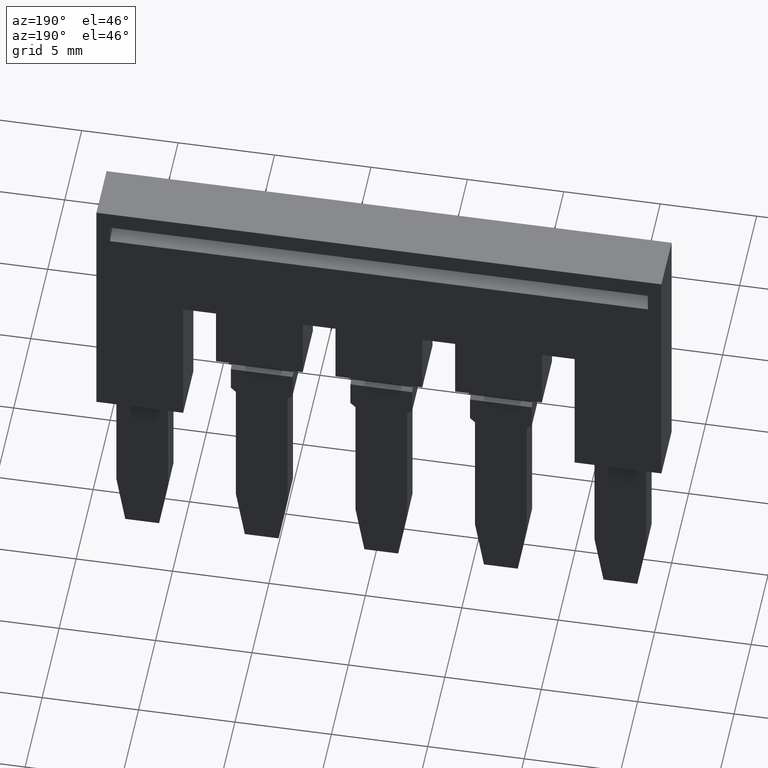
[diagram: clean part render]
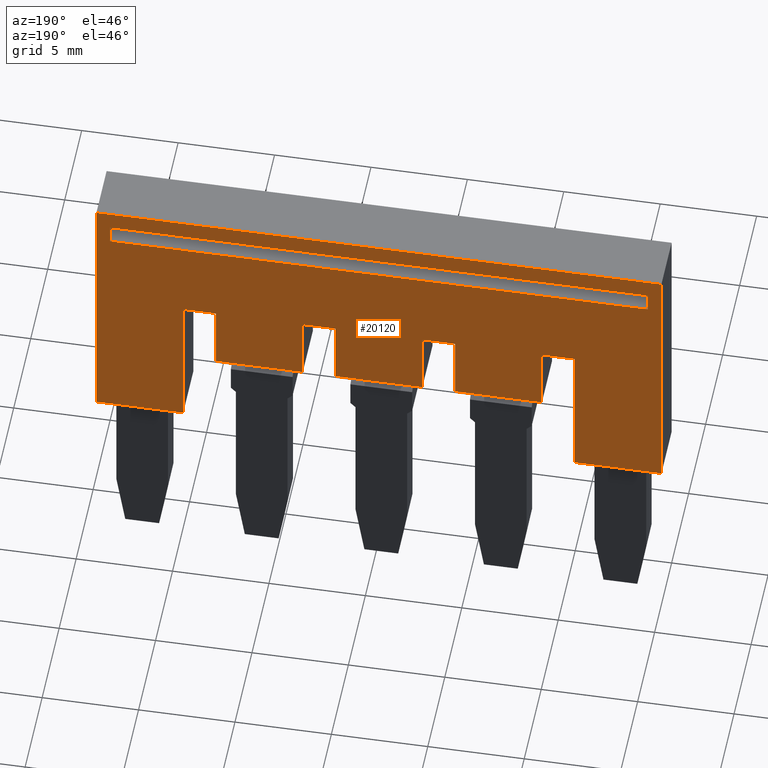
[diagram: same view with one face highlighted and labeled with its STEP entity id]
A machine part, auxiliary view. The second image highlights one B-rep face of the part: STEP entity #20120.
In plain terms, the highlighted planar face has unit normal (0, 1, -0).
Its self-contained STEP definition (entity closure, byte-faithful):
#120=CARTESIAN_POINT('',(2.60716722168534,-11.1389702342701,
32.1099999999988));
#130=VERTEX_POINT('',#120);
#280=CARTESIAN_POINT('',(2.60716722168534,-11.1389702342701,
60.0099999999949));
#290=VERTEX_POINT('',#280);
#320=CARTESIAN_POINT('',(2.60716722168534,-11.1389702342701,
47.0249839999962));
#330=DIRECTION('',(2.13821176807375E-50,0.,1.));
#340=VECTOR('',#330,1.);
#350=LINE('',#320,#340);
#360=EDGE_CURVE('',#130,#290,#350,.T.);
#570=CARTESIAN_POINT('',(2.60716722168534,-15.4750000000039,
43.8099999999949));
#580=VERTEX_POINT('',#570);
#630=CARTESIAN_POINT('',(2.60716722168534,-3.48876483258209E-12,
43.8099999999949));
#640=DIRECTION('',(0.,1.,0.));
#650=VECTOR('',#640,1.);
#660=LINE('',#630,#650);
#670=CARTESIAN_POINT('',(2.60716722168534,-18.9750000000039,
43.8099999999949));
#680=VERTEX_POINT('',#670);
#690=EDGE_CURVE('',#680,#580,#660,.T.);
#1480=CARTESIAN_POINT('',(2.60716722168534,-23.0750000000039,
56.2099999999949));
#1490=VERTEX_POINT('',#1480);
#1520=CARTESIAN_POINT('',(2.60716722168534,-23.0750000000039,
47.0249839999962));
#1530=DIRECTION('',(2.13821176807375E-50,0.,1.));
#1540=VECTOR('',#1530,1.);
#1550=LINE('',#1520,#1540);
#1560=CARTESIAN_POINT('',(2.60716722168534,-23.0750000000039,
60.7099999999949));
#1570=VERTEX_POINT('',#1560);
#1580=EDGE_CURVE('',#1490,#1570,#1550,.T.);
#4150=CARTESIAN_POINT('',(2.60716722168534,-15.4750000000039,
47.0749839999961));
#4160=DIRECTION('',(-2.13821176807375E-50,0.,-1.));
#4170=VECTOR('',#4160,1.);
#4180=LINE('',#4150,#4170);
#4190=CARTESIAN_POINT('',(2.60716722168534,-15.4750000000039,
56.2099999999949));
#4200=VERTEX_POINT('',#4190);
#4210=CARTESIAN_POINT('',(2.60716722168534,-15.4750000000039,
54.5099999999949));
#4220=VERTEX_POINT('',#4210);
#4230=EDGE_CURVE('',#4200,#4220,#4180,.T.);
#9000=CARTESIAN_POINT('',(2.60716722168534,-12.6051240000035,
56.2099999999949));
#9010=DIRECTION('',(0.,1.,0.));
#9020=VECTOR('',#9010,1.);
#9030=LINE('',#9000,#9020);
#9040=EDGE_CURVE('',#1490,#4200,#9030,.T.);
#10220=CARTESIAN_POINT('',(2.60716722168534,-18.9750000000039,
50.0099999999949));
#10230=VERTEX_POINT('',#10220);
#10310=CARTESIAN_POINT('',(2.60716722168534,-15.4750000000039,
50.0099999999949));
#10320=VERTEX_POINT('',#10310);
#10350=CARTESIAN_POINT('',(2.60716722168534,-3.48876483258209E-12,
50.0099999999949));
#10360=DIRECTION('',(0.,-1.,0.));
#10370=VECTOR('',#10360,1.);
#10380=LINE('',#10350,#10370);
#10390=EDGE_CURVE('',#10320,#10230,#10380,.T.);
#10880=CARTESIAN_POINT('',(2.60716722168534,-10.1410254037883,
60.0099999999949));
#10890=VERTEX_POINT('',#10880);
#10920=CARTESIAN_POINT('',(2.60716722168534,-12.6051240000035,
60.0099999999949));
#10930=DIRECTION('',(0.,-1.,0.));
#10940=VECTOR('',#10930,1.);
#10950=LINE('',#10920,#10940);
#10960=EDGE_CURVE('',#10890,#290,#10950,.T.);
#11880=CARTESIAN_POINT('',(2.60716722168534,-12.6051240000035,
60.7099999999949));
#11890=DIRECTION('',(0.,1.,0.));
#11900=VECTOR('',#11890,1.);
#11910=LINE('',#11880,#11900);
#11920=CARTESIAN_POINT('',(2.60716722168534,-9.17500000000389,
60.7099999999949));
#11930=VERTEX_POINT('',#11920);
#11940=EDGE_CURVE('',#1570,#11930,#11910,.T.);
#13340=CARTESIAN_POINT('',(2.60716722168534,-3.48876483258209E-12,
54.5099999999949));
#13350=DIRECTION('',(0.,-1.,0.));
#13360=VECTOR('',#13350,1.);
#13370=LINE('',#13340,#13360);
#13380=CARTESIAN_POINT('',(2.60716722168534,-18.9750000000039,
54.5099999999949));
#13390=VERTEX_POINT('',#13380);
#13400=EDGE_CURVE('',#4220,#13390,#13370,.T.);
#15600=CARTESIAN_POINT('',(2.60716722168534,-18.9750000000039,
-3.85114162781974E-12));
#15610=DIRECTION('',(2.13821176807375E-50,0.,1.));
#15620=VECTOR('',#15610,1.);
#15630=LINE('',#15600,#15620);
#15640=EDGE_CURVE('',#10230,#13390,#15630,.T.);
#18870=CARTESIAN_POINT('',(2.60716722168534,-10.4163739892175,
28.3444836175016));
#18880=DIRECTION('',(-1.,0.,2.13821176807375E-50));
#18890=DIRECTION('',(0.,-1.,0.));
#18900=AXIS2_PLACEMENT_3D('',#18870,#18880,#18890);
#18910=PLANE('',#18900);
#18920=ORIENTED_EDGE('',*,*,#11940,.T.);
#18930=ORIENTED_EDGE('',*,*,#1580,.T.);
#18940=ORIENTED_EDGE('',*,*,#9040,.F.);
#18950=ORIENTED_EDGE('',*,*,#4230,.F.);
#18960=ORIENTED_EDGE('',*,*,#13400,.F.);
#18970=ORIENTED_EDGE('',*,*,#15640,.T.);
#18980=ORIENTED_EDGE('',*,*,#10390,.T.);
#18990=CARTESIAN_POINT('',(2.60716722168534,-15.4750000000039,
47.0749839999961));
#19000=DIRECTION('',(-2.13821176807375E-50,0.,-1.));
#19010=VECTOR('',#19000,1.);
#19020=LINE('',#18990,#19010);
#19030=CARTESIAN_POINT('',(2.60716722168534,-15.4750000000039,
48.3099999999949));
#19040=VERTEX_POINT('',#19030);
#19050=EDGE_CURVE('',#10320,#19040,#19020,.T.);
#19060=ORIENTED_EDGE('',*,*,#19050,.F.);
#19070=CARTESIAN_POINT('',(2.60716722168534,-3.48876483258209E-12,
48.3099999999949));
#19080=DIRECTION('',(0.,-1.,0.));
#19090=VECTOR('',#19080,1.);
#19100=LINE('',#19070,#19090);
#19110=CARTESIAN_POINT('',(2.60716722168534,-18.9750000000039,
48.3099999999949));
#19120=VERTEX_POINT('',#19110);
#19130=EDGE_CURVE('',#19040,#19120,#19100,.T.);
#19140=ORIENTED_EDGE('',*,*,#19130,.F.);
#19150=CARTESIAN_POINT('',(2.60716722168534,-18.9750000000039,
-3.85114162781974E-12));
#19160=DIRECTION('',(2.13821176807375E-50,0.,1.));
#19170=VECTOR('',#19160,1.);
#19180=LINE('',#19150,#19170);
#19190=EDGE_CURVE('',#680,#19120,#19180,.T.);
#19200=ORIENTED_EDGE('',*,*,#19190,.T.);
#19210=ORIENTED_EDGE('',*,*,#690,.F.);
#19220=CARTESIAN_POINT('',(2.60716722168534,-15.4750000000039,
40.8749839999961));
#19230=DIRECTION('',(-2.13821176807375E-50,0.,-1.));
#19240=VECTOR('',#19230,1.);
#19250=LINE('',#19220,#19240);
#19260=CARTESIAN_POINT('',(2.60716722168534,-15.4750000000039,
42.1099999999949));
#19270=VERTEX_POINT('',#19260);
#19280=EDGE_CURVE('',#580,#19270,#19250,.T.);
#19290=ORIENTED_EDGE('',*,*,#19280,.F.);
#19300=CARTESIAN_POINT('',(2.60716722168534,-3.48876483258209E-12,
42.1099999999949));
#19310=DIRECTION('',(0.,-1.,0.));
#19320=VECTOR('',#19310,1.);
#19330=LINE('',#19300,#19320);
#19340=CARTESIAN_POINT('',(2.60716722168534,-18.9750000000039,
42.1099999999949));
#19350=VERTEX_POINT('',#19340);
#19360=EDGE_CURVE('',#19270,#19350,#19330,.T.);
#19370=ORIENTED_EDGE('',*,*,#19360,.F.);
#19380=CARTESIAN_POINT('',(2.60716722168534,-18.9750000000039,
-6.20000000000385));
#19390=DIRECTION('',(2.13821176807375E-50,0.,1.));
#19400=VECTOR('',#19390,1.);
#19410=LINE('',#19380,#19400);
#19420=CARTESIAN_POINT('',(2.60716722168534,-18.9750000000039,
37.6099999999949));
#19430=VERTEX_POINT('',#19420);
#19440=EDGE_CURVE('',#19430,#19350,#19410,.T.);
#19450=ORIENTED_EDGE('',*,*,#19440,.T.);
#19460=CARTESIAN_POINT('',(2.60716722168534,-3.48876483258209E-12,
37.6099999999949));
#19470=DIRECTION('',(0.,1.,0.));
#19480=VECTOR('',#19470,1.);
#19490=LINE('',#19460,#19480);
#19500=CARTESIAN_POINT('',(2.60716722168534,-15.4750000000039,
37.6099999999949));
#19510=VERTEX_POINT('',#19500);
#19520=EDGE_CURVE('',#19430,#19510,#19490,.T.);
#19530=ORIENTED_EDGE('',*,*,#19520,.F.);
#19540=CARTESIAN_POINT('',(2.60716722168534,-15.4750000000039,34.674984)
);
#19550=DIRECTION('',(-2.13821176807375E-50,0.,-1.));
#19560=VECTOR('',#19550,1.);
#19570=LINE('',#19540,#19560);
#19580=CARTESIAN_POINT('',(2.60716722168534,-15.4750000000039,
35.9099999999988));
#19590=VERTEX_POINT('',#19580);
#19600=EDGE_CURVE('',#19510,#19590,#19570,.T.);
#19610=ORIENTED_EDGE('',*,*,#19600,.F.);
#19620=CARTESIAN_POINT('',(2.60716722168534,-12.6051240000035,
35.9099999999988));
#19630=DIRECTION('',(0.,-1.,0.));
#19640=VECTOR('',#19630,1.);
#19650=LINE('',#19620,#19640);
#19660=CARTESIAN_POINT('',(2.60716722168534,-23.0750000000039,
35.9099999999988));
#19670=VERTEX_POINT('',#19660);
#19680=EDGE_CURVE('',#19590,#19670,#19650,.T.);
#19690=ORIENTED_EDGE('',*,*,#19680,.F.);
#19700=CARTESIAN_POINT('',(2.60716722168534,-23.0750000000039,40.824984)
);
#19710=DIRECTION('',(2.13821176807375E-50,0.,1.));
#19720=VECTOR('',#19710,1.);
#19730=LINE('',#19700,#19720);
#19740=CARTESIAN_POINT('',(2.60716722168534,-23.0750000000039,
31.4099999999988));
#19750=VERTEX_POINT('',#19740);
#19760=EDGE_CURVE('',#19750,#19670,#19730,.T.);
#19770=ORIENTED_EDGE('',*,*,#19760,.T.);
#19780=CARTESIAN_POINT('',(2.60716722168534,-12.6051240000035,
31.4099999999988));
#19790=DIRECTION('',(0.,1.,0.));
#19800=VECTOR('',#19790,1.);
#19810=LINE('',#19780,#19800);
#19820=CARTESIAN_POINT('',(2.60716722168534,-9.17500000000389,
31.4099999999988));
#19830=VERTEX_POINT('',#19820);
#19840=EDGE_CURVE('',#19750,#19830,#19810,.T.);
#19850=ORIENTED_EDGE('',*,*,#19840,.F.);
#19860=CARTESIAN_POINT('',(2.60716722168534,-9.17500000000389,40.824984)
);
#19870=DIRECTION('',(-2.13821176807375E-50,0.,-1.));
#19880=VECTOR('',#19870,1.);
#19890=LINE('',#19860,#19880);
#19900=EDGE_CURVE('',#11930,#19830,#19890,.T.);
#19910=ORIENTED_EDGE('',*,*,#19900,.T.);
#19920=EDGE_LOOP('',(#19910,#19850,#19770,#19690,#19610,#19530,#19450,
#19370,#19290,#19210,#19200,#19140,#19060,#18980,#18970,#18960,#18950,
#18940,#18930,#18920));
#19930=FACE_OUTER_BOUND('',#19920,.T.);
#19940=CARTESIAN_POINT('',(2.60716722168534,-12.6051240000035,
32.1099999999988));
#19950=DIRECTION('',(0.,1.,0.));
#19960=VECTOR('',#19950,1.);
#19970=LINE('',#19940,#19960);
#19980=CARTESIAN_POINT('',(2.60716722168534,-10.1410254037883,
32.1099999999988));
#19990=VERTEX_POINT('',#19980);
#20000=EDGE_CURVE('',#130,#19990,#19970,.T.);
#20010=ORIENTED_EDGE('',*,*,#20000,.T.);
#20020=ORIENTED_EDGE('',*,*,#360,.F.);
#20030=ORIENTED_EDGE('',*,*,#10960,.T.);
#20040=CARTESIAN_POINT('',(2.60716722168534,-10.1410254037883,40.824984)
);
#20050=DIRECTION('',(-2.13821176807375E-50,0.,-1.));
#20060=VECTOR('',#20050,1.);
#20070=LINE('',#20040,#20060);
#20080=EDGE_CURVE('',#10890,#19990,#20070,.T.);
#20090=ORIENTED_EDGE('',*,*,#20080,.F.);
#20100=EDGE_LOOP('',(#20090,#20030,#20020,#20010));
#20110=FACE_BOUND('',#20100,.T.);
#20120=ADVANCED_FACE('',(#19930,#20110),#18910,.T.);